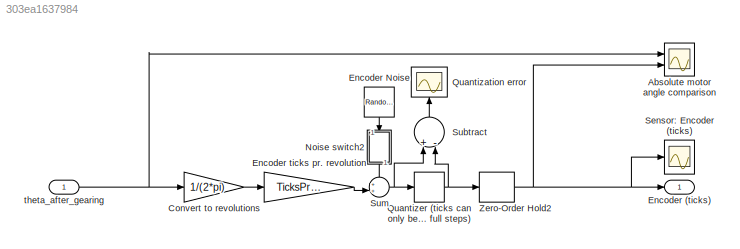
MODEL slx_303ea1637984
KIND model
CONFIG AbsTol = auto
CONFIG EnableMultiTasking = off
CONFIG FixedStep = auto
CONFIG InitFcn = Parameters_Model\nParameters_Simulation\nParameters_Estimators
CONFIG MaxStep = auto
CONFIG MinStep = auto
CONFIG PreLoadFcn = modelDir = fileparts(get_param(bdroot, 'FileName'));\naddpath(fullfile(modelDir,'Parameters'));\naddpath(fullfile(modelDir,'subsystems'));\n\nParameters_Model\nParameters_Simulation\nParameters_Estimators
CONFIG RelTol = 1e-3
CONFIG SampleTimeConstraint = Unconstrained
CONFIG Solver = VariableStepAuto
CONFIG SolverName = VariableStepAuto
CONFIG StartTime = 0.0
CONFIG StopTime = 10.0
BLOCK [Scope] Absolute motor angle comparison
  Floating = off
  NumInputPorts = 2
  Ports = [2]
  ScopeSpecificationString = Simulink.scopes.TimeScopeBlockCfg('CurrentConfiguration', extmgr.ConfigurationSet(extmgr.Configuration('Core','General UI',true),extmgr.Configuration('Core','Source UI',true),extmgr.Configuration('Sources','WiredSimulink',true,'DataLoggingVariableName','ScopeData1'),extmgr.Configuration('Visuals','Time Domain',true,'SerializedDisplays',{struct('MinYLimReal','-79.7903','MaxYLimReal','66.0325','YLab...<+2559ch>
BLOCK [Gain] Convert to revolutions
  Gain = 1/(2*pi)
  OutDataTypeStr = Inherit: Inherit via internal rule
  ParamDataTypeStr = Inherit: Inherit via internal rule
  SaturateOnIntegerOverflow = off
BLOCK [Outport] Encoder (ticks)
  IconDisplay = Port number
BLOCK [RandomNumber] Encoder Noise
  SampleTime = Ts_encoder
  Seed = 81
  Variance = sensor_sigma2_encoder
BLOCK [Gain] Encoder ticks pr. revolution
  Gain = TicksPrRev
  OutDataTypeStr = Inherit: Inherit via internal rule
  ParamDataTypeStr = Inherit: Inherit via internal rule
  SaturateOnIntegerOverflow = off
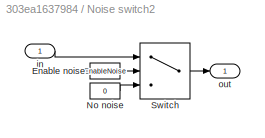
BLOCK [SubSystem] Noise switch2
  Ports = [1, 1]
  RequestExecContextInheritance = off
BLOCK [Constant] Noise switch2/Enable noise
  Value = EnableNoise
BLOCK [Constant] Noise switch2/No noise
  Value = 0
BLOCK [Switch] Noise switch2/Switch
  Criteria = u2 > Threshold
  InputSameDT = off
  SaturateOnIntegerOverflow = off
BLOCK [Inport] Noise switch2/in
  IconDisplay = Port number
BLOCK [Outport] Noise switch2/out
  IconDisplay = Port number
BLOCK [Scope] Quantization error
  Floating = off
  NumInputPorts = 1
  Ports = [1]
  ScopeSpecificationString = Simulink.scopes.TimeScopeBlockCfg('CurrentConfiguration', extmgr.ConfigurationSet(extmgr.Configuration('Core','General UI',true),extmgr.Configuration('Core','Source UI',true),extmgr.Configuration('Sources','WiredSimulink',true,'DataLoggingVariableName','ScopeData2'),extmgr.Configuration('Visuals','Time Domain',true,'SerializedDisplays',{struct('MinYLimReal','-0.50576','MaxYLimReal','0.51631','YLab...<+1494ch>
BLOCK [Quantizer] Quantizer (ticks can only be measured in full steps)
  QuantizationInterval = 1
BLOCK [Scope] Sensor: Encoder (ticks)
  Floating = off
  NumInputPorts = 1
  Ports = [1]
  ScopeSpecificationString = Simulink.scopes.TimeScopeBlockCfg('CurrentConfiguration', extmgr.ConfigurationSet(extmgr.Configuration('Core','General UI',true),extmgr.Configuration('Core','Source UI',true),extmgr.Configuration('Sources','WiredSimulink',true),extmgr.Configuration('Visuals','Time Domain',true,'SerializedDisplays',{struct('MinYLimReal','-2250541.625','MaxYLimReal','2175764.625','YLabelReal','','MinYLimMag','     0...<+1534ch>
BLOCK [Sum] Subtract
  InputSameDT = off
  Inputs = +-
  OutDataTypeStr = Inherit: Inherit via internal rule
  Ports = [2, 1]
  SaturateOnIntegerOverflow = off
BLOCK [Sum] Sum
  IconShape = round
  InputSameDT = off
  Inputs = ++|
  OutDataTypeStr = Inherit: Inherit via internal rule
  Ports = [2, 1]
  SaturateOnIntegerOverflow = off
BLOCK [ZeroOrderHold] Zero-Order Hold2
  SampleTime = Ts_encoder
BLOCK [Inport] theta_after_gearing
  IconDisplay = Port number
LINE Convert to revolutions:1 -> Encoder ticks pr. revolution:1
LINE Encoder Noise:1 -> Noise switch2:1
LINE Encoder ticks pr. revolution:1 -> Sum:2
LINE Noise switch2/Enable noise:1 -> Noise switch2/Switch:2
LINE Noise switch2/No noise:1 -> Noise switch2/Switch:3
LINE Noise switch2/Switch:1 -> Noise switch2/out:1
LINE Noise switch2/in:1 -> Noise switch2/Switch:1
LINE Noise switch2:1 -> Sum:1
NET Quantizer (ticks can only be measured in full steps):1 -> Subtract:2, Zero-Order Hold2:1
LINE Subtract:1 -> Quantization error:1
NET Sum:1 -> Quantizer (ticks can only be measured in full steps):1, Subtract:1
NET Zero-Order Hold2:1 -> Absolute motor angle comparison:2, Encoder (ticks):1, Sensor: Encoder (ticks):1
NET theta_after_gearing:1 -> Absolute motor angle comparison:1, Convert to revolutions:1
note: NET lines group one-source signal fan-out (src -> all destinations, sorted); 1:1 wires keep LINE
